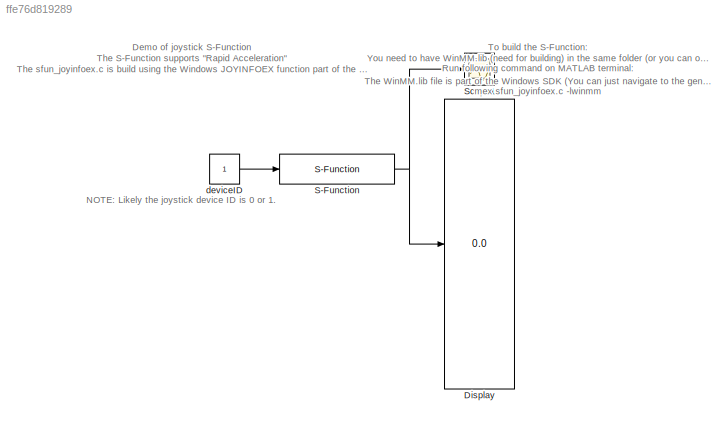
MODEL slx_ffe76d819289
KIND model
CONFIG AbsTol = auto
CONFIG EnableMultiTasking = off
CONFIG FixedStep = 1/500
CONFIG MaxStep = auto
CONFIG MinStep = auto
CONFIG RelTol = 1e-3
CONFIG SampleTimeConstraint = Unconstrained
CONFIG SolverName = ode1
CONFIG StartTime = 0.0
CONFIG StopTime = inf
BLOCK [Display] Display
  Decimation = 1
  Ports = [1]
BLOCK [S-Function] S-Function
  EnableBusSupport = off
  FunctionName = sfun_joyinfoex
  Ports = [1, 1]
  SFcnIsStateOwnerBlock = off
  SFunctionDeploymentMode = off
BLOCK [Scope] Scope1
  Floating = off
  NumInputPorts = 1
  Ports = [1]
  ScopeSpecificationString = Simulink.scopes.TimeScopeBlockCfg('CurrentConfiguration', extmgr.ConfigurationSet(extmgr.Configuration('Core','General UI',true),extmgr.Configuration('Core','Source UI',true),extmgr.Configuration('Sources','WiredSimulink',true,'DataLoggingVariableName','ScopeData1'),extmgr.Configuration('Visuals','Time Domain',true,'SerializedDisplays',{struct('MinYLimReal','-8191.875','MaxYLimReal','73726.875','Y...<+1692ch>
BLOCK [Constant] deviceID
ANNOTATION (root): To build the S-Function: You need to have WinMM.lib (need for building) in the same folder (or you can of course include the path into the build command). The WinMM.lib file is part of the Windows SDK (You can just navigate to the generated Windows Kit folder and search for it and make sure to pick the correct file according to your CPU architecture). Run following command on MATLAB terminal: mex ...<+24ch>
ANNOTATION (root): Demo of joystick S-Function The S-Function supports "Rapid Acceleration" The sfun_joyinfoex.c is build using the Windows JOYINFOEX function part of the Winmm library.
ANNOTATION (root): NOTE: Likely the joystick device ID is 0 or 1.
NET S-Function:1 -> Display:1, Scope1:1
LINE deviceID:1 -> S-Function:1
note: NET lines group one-source signal fan-out (src -> all destinations, sorted); 1:1 wires keep LINE
